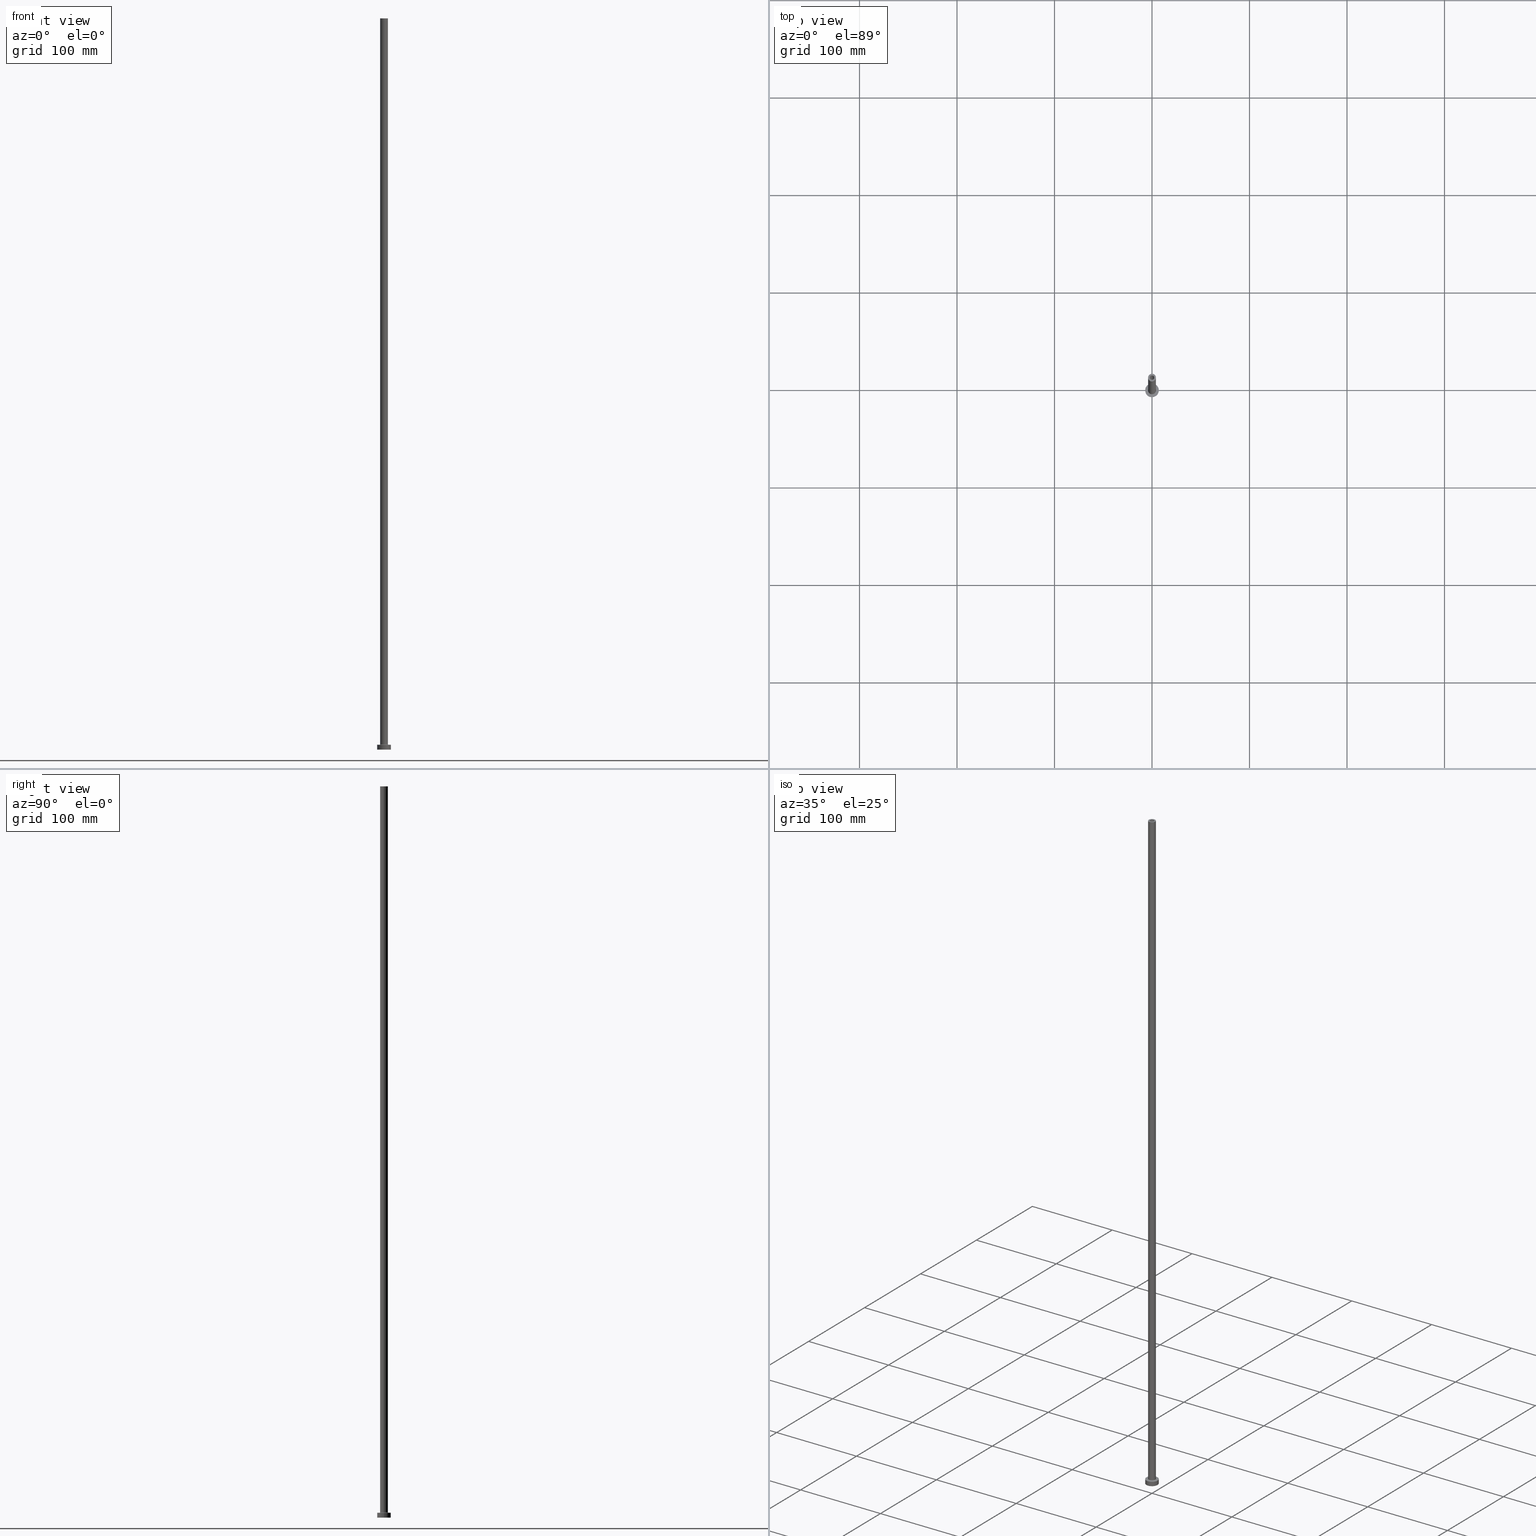
[diagram: canonical four-view strip — front | top / right | iso, engineering-drawing reading convention]
A machine part, canonical four-view strip (front | top / right | iso — engineering-drawing reading convention). The complete STEP part file that produces these views, byte-faithful:
ISO-10303-21;
HEADER;
FILE_DESCRIPTION (( 'STEP AP203' ),
    '1' );
FILE_NAME ('3938.STEP',
    '2023-02-13T17:19:23',
    ( '' ),
    ( '' ),
    'SwSTEP 2.0',
    'SolidWorks 2019',
    '' );
FILE_SCHEMA (( 'CONFIG_CONTROL_DESIGN' ));
ENDSEC;

DATA;
#1 = VERTEX_POINT ( 'NONE', #123 ) ;
#2 = FACE_BOUND ( 'NONE', #36, .T. ) ;
#3 = AXIS2_PLACEMENT_3D ( 'NONE', #62, #205, #174 ) ;
#4 = LINE ( 'NONE', #400, #33 ) ;
#5 = LOCAL_TIME ( 18, 19, 23.00000000000000000, #303 ) ;
#6 = ORIENTED_EDGE ( 'NONE', *, *, #371, .F. ) ;
#7 = CYLINDRICAL_SURFACE ( 'NONE', #146, 2.399999999999999911 ) ;
#8 = ORIENTED_EDGE ( 'NONE', *, *, #103, .T. ) ;
#9 = DIRECTION ( 'NONE',  ( 0.000000000000000000, 0.000000000000000000, 1.000000000000000000 ) ) ;
#10 = ORIENTED_EDGE ( 'NONE', *, *, #226, .T. ) ;
#11 = AXIS2_PLACEMENT_3D ( 'NONE', #353, #249, #321 ) ;
#12 = DIRECTION ( 'NONE',  ( -0.000000000000000000, -0.000000000000000000, -1.000000000000000000 ) ) ;
#13 = VERTEX_POINT ( 'NONE', #446 ) ;
#14 = CIRCLE ( 'NONE', #385, 2.399999999999999911 ) ;
#15 = CARTESIAN_POINT ( 'NONE',  ( -2.399999999999999911, 0.000000000000000000, 711.7882250993908428 ) ) ;
#16 = ORIENTED_EDGE ( 'NONE', *, *, #411, .F. ) ;
#17 = ORIENTED_EDGE ( 'NONE', *, *, #45, .T. ) ;
#18 = APPROVAL_DATE_TIME ( #229, #35 ) ;
#19 = CARTESIAN_POINT ( 'NONE',  ( 0.000000000000000000, 0.000000000000000000, 5.499999999999949374 ) ) ;
#20 = CIRCLE ( 'NONE', #296, 4.000000000000000000 ) ;
#21 = DIRECTION ( 'NONE',  ( 0.000000000000000000, 0.000000000000000000, 1.000000000000000000 ) ) ;
#22 = FACE_OUTER_BOUND ( 'NONE', #71, .T. ) ;
#23 = COORDINATED_UNIVERSAL_TIME_OFFSET ( 1, 0, .AHEAD. ) ;
#24 = CARTESIAN_POINT ( 'NONE',  ( -4.000000000000000000, 0.000000000000000000, 5.499999999999949374 ) ) ;
#25 = AXIS2_PLACEMENT_3D ( 'NONE', #276, #130, #34 ) ;
#26 = AXIS2_PLACEMENT_3D ( 'NONE', #304, #262, #367 ) ;
#27 = ADVANCED_FACE ( 'NONE', ( #273 ), #277, .F. ) ;
#28 = CARTESIAN_POINT ( 'NONE',  ( -2.250000000000000000, 0.000000000000000000, 750.0000000000000000 ) ) ;
#29 = CARTESIAN_POINT ( 'NONE',  ( 0.000000000000000000, 0.000000000000000000, 0.000000000000000000 ) ) ;
#30 = DIRECTION ( 'NONE',  ( 1.000000000000000000, 0.000000000000000000, -0.000000000000000000 ) ) ;
#31 = ADVANCED_FACE ( 'NONE', ( #195, #22 ), #374, .F. ) ;
#32 = VERTEX_POINT ( 'NONE', #24 ) ;
#33 = VECTOR ( 'NONE', #74, 1000.000000000000000 ) ;
#34 = DIRECTION ( 'NONE',  ( -1.000000000000000000, 0.000000000000000000, 0.000000000000000000 ) ) ;
#35 = APPROVAL ( #197, 'NEUR�EN�' ) ;
#36 = EDGE_LOOP ( 'NONE', ( #391, #329 ) ) ;
#37 = DIRECTION ( 'NONE',  ( 1.000000000000000000, 0.000000000000000000, 0.000000000000000000 ) ) ;
#38 = CARTESIAN_POINT ( 'NONE',  ( 0.000000000000000000, 0.000000000000000000, 711.7882250993908428 ) ) ;
#39 = APPLICATION_CONTEXT ( 'configuration controlled 3d designs of mechanical parts and assemblies' ) ;
#40 = CARTESIAN_POINT ( 'NONE',  ( 0.000000000000000000, 0.000000000000000000, 750.0000000000000000 ) ) ;
#41 = VERTEX_POINT ( 'NONE', #128 ) ;
#42 = CIRCLE ( 'NONE', #455, 0.5000000000000004441 ) ;
#43 = ORIENTED_EDGE ( 'NONE', *, *, #158, .T. ) ;
#44 = CARTESIAN_POINT ( 'NONE',  ( 4.000000000000000000, 4.898587196589412829E-16, 750.0000000000000000 ) ) ;
#45 = EDGE_CURVE ( 'NONE', #290, #13, #92, .T. ) ;
#46 = ORIENTED_EDGE ( 'NONE', *, *, #450, .T. ) ;
#47 = DIRECTION ( 'NONE',  ( -0.000000000000000000, -0.000000000000000000, -1.000000000000000000 ) ) ;
#48 = EDGE_LOOP ( 'NONE', ( #137, #155, #183, #441 ) ) ;
#49 = DIRECTION ( 'NONE',  ( 1.000000000000000000, 0.000000000000000000, 0.000000000000000000 ) ) ;
#50 = ORIENTED_EDGE ( 'NONE', *, *, #450, .F. ) ;
#51 = CARTESIAN_POINT ( 'NONE',  ( -2.399999999999999911, 0.000000000000000000, 0.000000000000000000 ) ) ;
#52 = PERSON_AND_ORGANIZATION ( #399, #381 ) ;
#53 = ORIENTED_EDGE ( 'NONE', *, *, #178, .F. ) ;
#54 =( NAMED_UNIT ( * ) SI_UNIT ( $, .STERADIAN. ) SOLID_ANGLE_UNIT ( ) );
#55 = AXIS2_PLACEMENT_3D ( 'NONE', #370, #452, #56 ) ;
#56 = DIRECTION ( 'NONE',  ( 1.000000000000000000, 0.000000000000000000, 0.000000000000000000 ) ) ;
#57 = APPLICATION_PROTOCOL_DEFINITION ( 'international standard', 'config_control_design', 1994, #169 ) ;
#58 = CYLINDRICAL_SURFACE ( 'NONE', #214, 7.000000000000000000 ) ;
#59 = ADVANCED_FACE ( 'NONE', ( #306 ), #58, .T. ) ;
#60 = CLOSED_SHELL ( 'NONE', ( #141, #387, #27, #272, #248, #59, #283, #307, #313, #340, #86, #434, #31, #332 ) ) ;
#61 = TOROIDAL_SURFACE ( 'NONE', #423, 4.500000000000000888, 0.5000000000000000000 ) ;
#62 = CARTESIAN_POINT ( 'NONE',  ( 0.000000000000000000, 0.000000000000000000, 705.0000000000000000 ) ) ;
#63 = CARTESIAN_POINT ( 'NONE',  ( 0.000000000000000000, 0.000000000000000000, 0.000000000000000000 ) ) ;
#64 = EDGE_LOOP ( 'NONE', ( #132, #79 ) ) ;
#65 = CARTESIAN_POINT ( 'NONE',  ( -4.500000000000000888, 5.510910596163089556E-16, 5.499999999999949374 ) ) ;
#66 = AXIS2_PLACEMENT_3D ( 'NONE', #38, #114, #317 ) ;
#67 = DIRECTION ( 'NONE',  ( 0.000000000000000000, 0.000000000000000000, -1.000000000000000000 ) ) ;
#68 = ORIENTED_EDGE ( 'NONE', *, *, #239, .T. ) ;
#69 = AXIS2_PLACEMENT_3D ( 'NONE', #235, #280, #96 ) ;
#70 = DIRECTION ( 'NONE',  ( 0.000000000000000000, 0.000000000000000000, 1.000000000000000000 ) ) ;
#71 = EDGE_LOOP ( 'NONE', ( #356, #250 ) ) ;
#72 = CARTESIAN_POINT ( 'NONE',  ( 4.000000000000000000, 4.898587196589412829E-16, 5.499999999999949374 ) ) ;
#73 = ORIENTED_EDGE ( 'NONE', *, *, #278, .T. ) ;
#74 = DIRECTION ( 'NONE',  ( -0.000000000000000000, -0.000000000000000000, -1.000000000000000000 ) ) ;
#75 = VECTOR ( 'NONE', #417, 1000.000000000000000 ) ;
#76 = CC_DESIGN_APPROVAL ( #35, ( #291 ) ) ;
#77 = ORIENTED_EDGE ( 'NONE', *, *, #110, .F. ) ;
#78 = CYLINDRICAL_SURFACE ( 'NONE', #66, 2.399999999999999911 ) ;
#79 = ORIENTED_EDGE ( 'NONE', *, *, #288, .F. ) ;
#80 = LINE ( 'NONE', #359, #154 ) ;
#81 = VERTEX_POINT ( 'NONE', #337 ) ;
#82 = DIRECTION ( 'NONE',  ( -1.000000000000000000, 0.000000000000000000, 0.000000000000000000 ) ) ;
#83 = CIRCLE ( 'NONE', #319, 4.000000000000000000 ) ;
#84 = ORIENTED_EDGE ( 'NONE', *, *, #253, .T. ) ;
#85 = DIRECTION ( 'NONE',  ( 1.000000000000000000, 0.000000000000000000, 0.000000000000000000 ) ) ;
#86 = ADVANCED_FACE ( 'NONE', ( #157 ), #61, .F. ) ;
#87 = APPROVAL_DATE_TIME ( #118, #105 ) ;
#88 = DIRECTION ( 'NONE',  ( 1.000000000000000000, 0.000000000000000000, 0.000000000000000000 ) ) ;
#89 = PERSON_AND_ORGANIZATION ( #399, #381 ) ;
#90 = EDGE_LOOP ( 'NONE', ( #225, #402, #217, #218 ) ) ;
#91 = COORDINATED_UNIVERSAL_TIME_OFFSET ( 1, 0, .AHEAD. ) ;
#92 = LINE ( 'NONE', #266, #75 ) ;
#93 = DIRECTION ( 'NONE',  ( 1.000000000000000000, 0.000000000000000000, 0.000000000000000000 ) ) ;
#94 = CARTESIAN_POINT ( 'NONE',  ( -7.000000000000000000, 0.000000000000000000, 0.000000000000000000 ) ) ;
#95 = AXIS2_PLACEMENT_3D ( 'NONE', #63, #206, #30 ) ;
#96 = DIRECTION ( 'NONE',  ( 1.000000000000000000, 0.000000000000000000, 0.000000000000000000 ) ) ;
#97 = DIRECTION ( 'NONE',  ( 0.000000000000000000, 0.000000000000000000, 1.000000000000000000 ) ) ;
#98 = CARTESIAN_POINT ( 'NONE',  ( 4.500000000000000888, 0.000000000000000000, 5.499999999999949374 ) ) ;
#99 = VERTEX_POINT ( 'NONE', #454 ) ;
#100 = VECTOR ( 'NONE', #242, 1000.000000000000000 ) ;
#101 = CC_DESIGN_APPROVAL ( #347, ( #271 ) ) ;
#102 = CARTESIAN_POINT ( 'NONE',  ( 0.000000000000000000, 0.000000000000000000, 5.000000000000000000 ) ) ;
#103 = EDGE_CURVE ( 'NONE', #232, #41, #380, .T. ) ;
#104 = FACE_OUTER_BOUND ( 'NONE', #435, .T. ) ;
#105 = APPROVAL ( #151, 'NEUR�EN�' ) ;
#106 = ORIENTED_EDGE ( 'NONE', *, *, #352, .T. ) ;
#107 = CARTESIAN_POINT ( 'NONE',  ( 0.000000000000000000, 0.000000000000000000, 750.0000000000000000 ) ) ;
#108 = MANIFOLD_SOLID_BREP ( 'Odebrat vysunut�m4', #60 ) ;
#109 = ORIENTED_EDGE ( 'NONE', *, *, #167, .F. ) ;
#110 = EDGE_CURVE ( 'NONE', #144, #147, #447, .T. ) ;
#111 = DIRECTION ( 'NONE',  ( -0.000000000000000000, -0.000000000000000000, -1.000000000000000000 ) ) ;
#112 = CC_DESIGN_APPROVAL ( #105, ( #177 ) ) ;
#113 = EDGE_LOOP ( 'NONE', ( #233, #8, #444, #252 ) ) ;
#114 = DIRECTION ( 'NONE',  ( 0.000000000000000000, 0.000000000000000000, -1.000000000000000000 ) ) ;
#115 = VERTEX_POINT ( 'NONE', #270 ) ;
#116 = DIRECTION ( 'NONE',  ( 0.000000000000000000, 0.000000000000000000, 1.000000000000000000 ) ) ;
#117 = ORIENTED_EDGE ( 'NONE', *, *, #352, .F. ) ;
#118 = DATE_AND_TIME ( #412, #203 ) ;
#119 = CIRCLE ( 'NONE', #377, 7.000000000000000000 ) ;
#120 = CIRCLE ( 'NONE', #55, 4.000000000000000000 ) ;
#121 = CYLINDRICAL_SURFACE ( 'NONE', #26, 2.250000000000000000 ) ;
#122 = PERSON_AND_ORGANIZATION_ROLE ( 'creator' ) ;
#123 = CARTESIAN_POINT ( 'NONE',  ( -7.000000000000000000, 0.000000000000000000, 5.000000000000000000 ) ) ;
#124 = DIRECTION ( 'NONE',  ( 0.000000000000000000, 0.000000000000000000, 1.000000000000000000 ) ) ;
#125 = CALENDAR_DATE ( 2023, 13, 2 ) ;
#126 = DIRECTION ( 'NONE',  ( 0.000000000000000000, 0.000000000000000000, 1.000000000000000000 ) ) ;
#127 = PRODUCT ( '3938', '3938', '', ( #156 ) ) ;
#128 = CARTESIAN_POINT ( 'NONE',  ( -2.399999999999999911, 0.000000000000000000, 705.0000000000000000 ) ) ;
#129 = DIRECTION ( 'NONE',  ( 1.000000000000000000, 0.000000000000000000, -0.000000000000000000 ) ) ;
#130 = DIRECTION ( 'NONE',  ( -0.000000000000000000, -0.000000000000000000, -1.000000000000000000 ) ) ;
#131 = CC_DESIGN_DATE_AND_TIME_ASSIGNMENT ( #159, #269, ( #271 ) ) ;
#132 = ORIENTED_EDGE ( 'NONE', *, *, #220, .F. ) ;
#133 = AXIS2_PLACEMENT_3D ( 'NONE', #140, #9, #328 ) ;
#134 = FACE_OUTER_BOUND ( 'NONE', #48, .T. ) ;
#135 = CIRCLE ( 'NONE', #245, 7.000000000000000000 ) ;
#136 = DIRECTION ( 'NONE',  ( -0.000000000000000000, -0.000000000000000000, -1.000000000000000000 ) ) ;
#137 = ORIENTED_EDGE ( 'NONE', *, *, #158, .F. ) ;
#138 = FACE_OUTER_BOUND ( 'NONE', #437, .T. ) ;
#139 = FACE_OUTER_BOUND ( 'NONE', #113, .T. ) ;
#140 = CARTESIAN_POINT ( 'NONE',  ( 0.000000000000000000, 0.000000000000000000, 750.0000000000000000 ) ) ;
#141 = ADVANCED_FACE ( 'NONE', ( #295 ), #121, .F. ) ;
#142 = ORIENTED_EDGE ( 'NONE', *, *, #264, .F. ) ;
#143 = LINE ( 'NONE', #219, #243 ) ;
#144 = VERTEX_POINT ( 'NONE', #51 ) ;
#145 = CYLINDRICAL_SURFACE ( 'NONE', #422, 4.000000000000000000 ) ;
#146 = AXIS2_PLACEMENT_3D ( 'NONE', #326, #289, #82 ) ;
#147 = VERTEX_POINT ( 'NONE', #192 ) ;
#148 = CARTESIAN_POINT ( 'NONE',  ( 0.000000000000000000, 0.000000000000000000, 750.0000000000000000 ) ) ;
#149 = ORIENTED_EDGE ( 'NONE', *, *, #421, .F. ) ;
#150 = CC_DESIGN_PERSON_AND_ORGANIZATION_ASSIGNMENT ( #191, #294, ( #127 ) ) ;
#151 = APPROVAL_STATUS ( 'not_yet_approved' ) ;
#152 = CARTESIAN_POINT ( 'NONE',  ( 0.000000000000000000, 0.000000000000000000, 0.000000000000000000 ) ) ;
#153 = PERSON_AND_ORGANIZATION_ROLE ( 'creator' ) ;
#154 = VECTOR ( 'NONE', #181, 1000.000000000000000 ) ;
#155 = ORIENTED_EDGE ( 'NONE', *, *, #371, .T. ) ;
#156 = MECHANICAL_CONTEXT ( 'NONE', #39, 'mechanical' ) ;
#157 = FACE_OUTER_BOUND ( 'NONE', #325, .T. ) ;
#158 = EDGE_CURVE ( 'NONE', #115, #1, #202, .T. ) ;
#159 = DATE_AND_TIME ( #125, #299 ) ;
#160 = EDGE_LOOP ( 'NONE', ( #362, #293 ) ) ;
#161 = COORDINATED_UNIVERSAL_TIME_OFFSET ( 1, 0, .AHEAD. ) ;
#162 = ORIENTED_EDGE ( 'NONE', *, *, #234, .T. ) ;
#163 = AXIS2_PLACEMENT_3D ( 'NONE', #430, #240, #461 ) ;
#164 = APPROVAL_PERSON_ORGANIZATION ( #227, #347, #416 ) ;
#165 = CIRCLE ( 'NONE', #376, 4.500000000000000888 ) ;
#166 = CARTESIAN_POINT ( 'NONE',  ( -4.000000000000000000, 0.000000000000000000, 750.0000000000000000 ) ) ;
#167 = EDGE_CURVE ( 'NONE', #375, #32, #83, .T. ) ;
#168 = CARTESIAN_POINT ( 'NONE',  ( 0.000000000000000000, 0.000000000000000000, 750.0000000000000000 ) ) ;
#169 = APPLICATION_CONTEXT ( 'configuration controlled 3d designs of mechanical parts and assemblies' ) ;
#170 = DIRECTION ( 'NONE',  ( 1.000000000000000000, 0.000000000000000000, 0.000000000000000000 ) ) ;
#171 = CC_DESIGN_SECURITY_CLASSIFICATION ( #271, ( #177 ) ) ;
#172 = DIRECTION ( 'NONE',  ( 1.224646799147353207E-16, 1.000000000000000000, -0.000000000000000000 ) ) ;
#173 = EDGE_CURVE ( 'NONE', #32, #375, #120, .T. ) ;
#174 = DIRECTION ( 'NONE',  ( 1.000000000000000000, 0.000000000000000000, 0.000000000000000000 ) ) ;
#175 = PLANE ( 'NONE',  #133 ) ;
#176 = AXIS2_PLACEMENT_3D ( 'NONE', #316, #136, #37 ) ;
#177 = PRODUCT_DEFINITION_FORMATION_WITH_SPECIFIED_SOURCE ( 'LIBOVOLN�', '', #127, .NOT_KNOWN. ) ;
#178 = EDGE_CURVE ( 'NONE', #32, #284, #389, .T. ) ;
#179 = CYLINDRICAL_SURFACE ( 'NONE', #395, 2.250000000000000000 ) ;
#180 = ORIENTED_EDGE ( 'NONE', *, *, #45, .F. ) ;
#181 = DIRECTION ( 'NONE',  ( 0.000000000000000000, 0.000000000000000000, -1.000000000000000000 ) ) ;
#182 = PRODUCT_RELATED_PRODUCT_CATEGORY ( 'detail', '', ( #127 ) ) ;
#183 = ORIENTED_EDGE ( 'NONE', *, *, #288, .T. ) ;
#184 = DIRECTION ( 'NONE',  ( -0.000000000000000000, -0.000000000000000000, -1.000000000000000000 ) ) ;
#185 = EDGE_LOOP ( 'NONE', ( #180, #208, #46, #331 ) ) ;
#186 = VECTOR ( 'NONE', #436, 1000.000000000000000 ) ;
#187 = DIRECTION ( 'NONE',  ( -1.000000000000000000, 0.000000000000000000, 0.000000000000000000 ) ) ;
#188 = ORIENTED_EDGE ( 'NONE', *, *, #204, .T. ) ;
#189 = CALENDAR_DATE ( 2023, 13, 2 ) ;
#190 = VERTEX_POINT ( 'NONE', #94 ) ;
#191 = PERSON_AND_ORGANIZATION ( #399, #381 ) ;
#192 = CARTESIAN_POINT ( 'NONE',  ( 2.399999999999999911, 2.939152317953647106E-16, 0.000000000000000000 ) ) ;
#193 = CALENDAR_DATE ( 2023, 13, 2 ) ;
#194 = CIRCLE ( 'NONE', #456, 2.250000000000000000 ) ;
#195 = FACE_BOUND ( 'NONE', #379, .T. ) ;
#196 = AXIS2_PLACEMENT_3D ( 'NONE', #65, #172, #207 ) ;
#197 = APPROVAL_STATUS ( 'not_yet_approved' ) ;
#198 = CARTESIAN_POINT ( 'NONE',  ( 0.000000000000000000, 0.000000000000000000, 5.499999999999949374 ) ) ;
#199 = APPROVAL_DATE_TIME ( #231, #347 ) ;
#200 = DIRECTION ( 'NONE',  ( -0.000000000000000000, -0.000000000000000000, -1.000000000000000000 ) ) ;
#201 = DIRECTION ( 'NONE',  ( -0.000000000000000000, -0.000000000000000000, -1.000000000000000000 ) ) ;
#202 = CIRCLE ( 'NONE', #336, 7.000000000000000000 ) ;
#203 = LOCAL_TIME ( 18, 19, 23.00000000000000000, #448 ) ;
#204 = EDGE_CURVE ( 'NONE', #13, #286, #418, .T. ) ;
#205 = DIRECTION ( 'NONE',  ( 0.000000000000000000, 0.000000000000000000, 1.000000000000000000 ) ) ;
#206 = DIRECTION ( 'NONE',  ( 0.000000000000000000, 0.000000000000000000, 1.000000000000000000 ) ) ;
#207 = DIRECTION ( 'NONE',  ( -1.000000000000000000, 1.224646799147351482E-16, 0.000000000000000000 ) ) ;
#208 = ORIENTED_EDGE ( 'NONE', *, *, #345, .T. ) ;
#209 = DIRECTION ( 'NONE',  ( -0.000000000000000000, -0.000000000000000000, -1.000000000000000000 ) ) ;
#210 = CARTESIAN_POINT ( 'NONE',  ( 2.250000000000000000, 2.755455298081544285E-16, 750.0000000000000000 ) ) ;
#211 = DIRECTION ( 'NONE',  ( 1.000000000000000000, 0.000000000000000000, 0.000000000000000000 ) ) ;
#212 = EDGE_LOOP ( 'NONE', ( #117, #327 ) ) ;
#213 = CIRCLE ( 'NONE', #429, 7.000000000000000000 ) ;
#214 = AXIS2_PLACEMENT_3D ( 'NONE', #228, #200, #339 ) ;
#215 = CC_DESIGN_PERSON_AND_ORGANIZATION_ASSIGNMENT ( #409, #373, ( #271 ) ) ;
#216 = LINE ( 'NONE', #44, #259 ) ;
#217 = ORIENTED_EDGE ( 'NONE', *, *, #404, .F. ) ;
#218 = ORIENTED_EDGE ( 'NONE', *, *, #226, .F. ) ;
#219 = CARTESIAN_POINT ( 'NONE',  ( 7.000000000000000000, 8.572527594031473190E-16, 5.000000000000000000 ) ) ;
#220 = EDGE_CURVE ( 'NONE', #190, #81, #135, .T. ) ;
#221 = EDGE_LOOP ( 'NONE', ( #106, #17, #238, #50 ) ) ;
#222 = AXIS2_PLACEMENT_3D ( 'NONE', #198, #449, #301 ) ;
#223 = PERSON_AND_ORGANIZATION ( #399, #381 ) ;
#224 = ORIENTED_EDGE ( 'NONE', *, *, #426, .T. ) ;
#225 = ORIENTED_EDGE ( 'NONE', *, *, #173, .F. ) ;
#226 = EDGE_CURVE ( 'NONE', #375, #358, #42, .T. ) ;
#227 = PERSON_AND_ORGANIZATION ( #399, #381 ) ;
#228 = CARTESIAN_POINT ( 'NONE',  ( 0.000000000000000000, 0.000000000000000000, 5.000000000000000000 ) ) ;
#229 = DATE_AND_TIME ( #189, #5 ) ;
#230 = CARTESIAN_POINT ( 'NONE',  ( 0.000000000000000000, 0.000000000000000000, 5.000000000000000000 ) ) ;
#231 = DATE_AND_TIME ( #330, #350 ) ;
#232 = VERTEX_POINT ( 'NONE', #315 ) ;
#233 = ORIENTED_EDGE ( 'NONE', *, *, #324, .F. ) ;
#234 = EDGE_CURVE ( 'NONE', #99, #32, #311, .T. ) ;
#235 = CARTESIAN_POINT ( 'NONE',  ( 0.000000000000000000, 0.000000000000000000, 705.0000000000000000 ) ) ;
#236 = AXIS2_PLACEMENT_3D ( 'NONE', #152, #201, #93 ) ;
#237 = FACE_BOUND ( 'NONE', #257, .T. ) ;
#238 = ORIENTED_EDGE ( 'NONE', *, *, #278, .F. ) ;
#239 = EDGE_CURVE ( 'NONE', #147, #144, #363, .T. ) ;
#240 = DIRECTION ( 'NONE',  ( -0.000000000000000000, -0.000000000000000000, -1.000000000000000000 ) ) ;
#241 = AXIS2_PLACEMENT_3D ( 'NONE', #407, #21, #49 ) ;
#242 = DIRECTION ( 'NONE',  ( -0.000000000000000000, -0.000000000000000000, -1.000000000000000000 ) ) ;
#243 = VECTOR ( 'NONE', #184, 1000.000000000000000 ) ;
#244 = DIRECTION ( 'NONE',  ( 0.000000000000000000, 0.000000000000000000, 1.000000000000000000 ) ) ;
#245 = AXIS2_PLACEMENT_3D ( 'NONE', #29, #378, #170 ) ;
#246 = CARTESIAN_POINT ( 'NONE',  ( 0.000000000000000000, 0.000000000000000000, 5.000000000000000000 ) ) ;
#247 = VERTEX_POINT ( 'NONE', #346 ) ;
#248 = ADVANCED_FACE ( 'NONE', ( #134 ), #281, .T. ) ;
#249 = DIRECTION ( 'NONE',  ( 0.000000000000000000, 0.000000000000000000, 1.000000000000000000 ) ) ;
#250 = ORIENTED_EDGE ( 'NONE', *, *, #103, .F. ) ;
#251 = DIRECTION ( 'NONE',  ( 0.000000000000000000, 0.000000000000000000, 1.000000000000000000 ) ) ;
#252 = ORIENTED_EDGE ( 'NONE', *, *, #110, .T. ) ;
#253 = EDGE_CURVE ( 'NONE', #1, #115, #213, .T. ) ;
#254 = CARTESIAN_POINT ( 'NONE',  ( 0.000000000000000000, 0.000000000000000000, 705.0000000000000000 ) ) ;
#255 = VERTEX_POINT ( 'NONE', #28 ) ;
#256 = DIRECTION ( 'NONE',  ( 1.000000000000000000, 0.000000000000000000, 0.000000000000000000 ) ) ;
#257 = EDGE_LOOP ( 'NONE', ( #77, #360 ) ) ;
#258 = ADVANCED_BREP_SHAPE_REPRESENTATION ( '3938', ( #108, #241 ), #401 ) ;
#259 = VECTOR ( 'NONE', #47, 1000.000000000000000 ) ;
#260 = AXIS2_PLACEMENT_3D ( 'NONE', #390, #97, #129 ) ;
#261 = LOCAL_TIME ( 18, 19, 23.00000000000000000, #161 ) ;
#262 = DIRECTION ( 'NONE',  ( 0.000000000000000000, 0.000000000000000000, -1.000000000000000000 ) ) ;
#263 = AXIS2_PLACEMENT_3D ( 'NONE', #413, #419, #342 ) ;
#264 = EDGE_CURVE ( 'NONE', #284, #358, #318, .T. ) ;
#265 = SECURITY_CLASSIFICATION_LEVEL ( 'unclassified' ) ;
#266 = CARTESIAN_POINT ( 'NONE',  ( 2.250000000000000000, 2.755455298081544285E-16, 750.0000000000000000 ) ) ;
#267 = DIRECTION ( 'NONE',  ( 0.000000000000000000, 0.000000000000000000, 1.000000000000000000 ) ) ;
#268 = CIRCLE ( 'NONE', #11, 2.250000000000000000 ) ;
#269 = DATE_TIME_ROLE ( 'classification_date' ) ;
#270 = CARTESIAN_POINT ( 'NONE',  ( 7.000000000000000000, 8.572527594031473190E-16, 5.000000000000000000 ) ) ;
#271 = SECURITY_CLASSIFICATION ( '', '', #265 ) ;
#272 = ADVANCED_FACE ( 'NONE', ( #351 ), #279, .T. ) ;
#273 = FACE_OUTER_BOUND ( 'NONE', #90, .T. ) ;
#274 = DESIGN_CONTEXT ( 'detailed design', #169, 'design' ) ;
#275 = CARTESIAN_POINT ( 'NONE',  ( 0.000000000000000000, 0.000000000000000000, 0.000000000000000000 ) ) ;
#276 = CARTESIAN_POINT ( 'NONE',  ( 0.000000000000000000, 0.000000000000000000, 750.0000000000000000 ) ) ;
#277 = TOROIDAL_SURFACE ( 'NONE', #222, 4.500000000000000888, 0.5000000000000000000 ) ;
#278 = EDGE_CURVE ( 'NONE', #286, #13, #406, .T. ) ;
#279 = CYLINDRICAL_SURFACE ( 'NONE', #25, 4.000000000000000000 ) ;
#280 = DIRECTION ( 'NONE',  ( 0.000000000000000000, 0.000000000000000000, 1.000000000000000000 ) ) ;
#281 = CYLINDRICAL_SURFACE ( 'NONE', #163, 7.000000000000000000 ) ;
#282 = DIRECTION ( 'NONE',  ( -1.000000000000000000, 0.000000000000000000, 0.000000000000000000 ) ) ;
#283 = ADVANCED_FACE ( 'NONE', ( #2, #138 ), #314, .T. ) ;
#284 = VERTEX_POINT ( 'NONE', #348 ) ;
#285 = LINE ( 'NONE', #403, #186 ) ;
#286 = VERTEX_POINT ( 'NONE', #384 ) ;
#287 = ORIENTED_EDGE ( 'NONE', *, *, #442, .T. ) ;
#288 = EDGE_CURVE ( 'NONE', #81, #190, #119, .T. ) ;
#289 = DIRECTION ( 'NONE',  ( 0.000000000000000000, 0.000000000000000000, -1.000000000000000000 ) ) ;
#290 = VERTEX_POINT ( 'NONE', #210 ) ;
#291 = PRODUCT_DEFINITION ( 'NEZN�M�', '', #177, #274 ) ;
#292 = DIRECTION ( 'NONE',  ( 0.000000000000000000, 0.000000000000000000, -1.000000000000000000 ) ) ;
#293 = ORIENTED_EDGE ( 'NONE', *, *, #411, .T. ) ;
#294 = PERSON_AND_ORGANIZATION_ROLE ( 'design_owner' ) ;
#295 = FACE_OUTER_BOUND ( 'NONE', #221, .T. ) ;
#296 = AXIS2_PLACEMENT_3D ( 'NONE', #168, #312, #459 ) ;
#297 = AXIS2_PLACEMENT_3D ( 'NONE', #372, #124, #309 ) ;
#298 = DATE_AND_TIME ( #193, #261 ) ;
#299 = LOCAL_TIME ( 18, 19, 23.00000000000000000, #23 ) ;
#300 = EDGE_CURVE ( 'NONE', #99, #247, #20, .T. ) ;
#301 = DIRECTION ( 'NONE',  ( 1.000000000000000000, 0.000000000000000000, 0.000000000000000000 ) ) ;
#302 = UNCERTAINTY_MEASURE_WITH_UNIT (LENGTH_MEASURE( 1.000000000000000082E-05 ), #438, 'distance_accuracy_value', 'NONE');
#303 = COORDINATED_UNIVERSAL_TIME_OFFSET ( 1, 0, .AHEAD. ) ;
#304 = CARTESIAN_POINT ( 'NONE',  ( 0.000000000000000000, 0.000000000000000000, 750.0000000000000000 ) ) ;
#305 =( NAMED_UNIT ( * ) PLANE_ANGLE_UNIT ( ) SI_UNIT ( $, .RADIAN. ) );
#306 = FACE_OUTER_BOUND ( 'NONE', #322, .T. ) ;
#307 = ADVANCED_FACE ( 'NONE', ( #237, #424 ), #382, .F. ) ;
#308 = SHAPE_DEFINITION_REPRESENTATION ( #344, #258 ) ;
#309 = DIRECTION ( 'NONE',  ( 1.000000000000000000, 0.000000000000000000, 0.000000000000000000 ) ) ;
#310 = AXIS2_PLACEMENT_3D ( 'NONE', #357, #397, #211 ) ;
#311 = LINE ( 'NONE', #166, #100 ) ;
#312 = DIRECTION ( 'NONE',  ( 0.000000000000000000, 0.000000000000000000, 1.000000000000000000 ) ) ;
#313 = ADVANCED_FACE ( 'NONE', ( #349 ), #145, .T. ) ;
#314 = PLANE ( 'NONE',  #260 ) ;
#315 = CARTESIAN_POINT ( 'NONE',  ( 2.399999999999999911, 2.939152317953647106E-16, 705.0000000000000000 ) ) ;
#316 = CARTESIAN_POINT ( 'NONE',  ( 0.000000000000000000, 0.000000000000000000, 0.000000000000000000 ) ) ;
#317 = DIRECTION ( 'NONE',  ( -1.000000000000000000, 0.000000000000000000, 0.000000000000000000 ) ) ;
#318 = CIRCLE ( 'NONE', #335, 4.500000000000000888 ) ;
#319 = AXIS2_PLACEMENT_3D ( 'NONE', #19, #410, #88 ) ;
#320 = CC_DESIGN_PERSON_AND_ORGANIZATION_ASSIGNMENT ( #453, #122, ( #177 ) ) ;
#321 = DIRECTION ( 'NONE',  ( 1.000000000000000000, 0.000000000000000000, 0.000000000000000000 ) ) ;
#322 = EDGE_LOOP ( 'NONE', ( #6, #398, #224, #457 ) ) ;
#323 = DIRECTION ( 'NONE',  ( 1.000000000000000000, 0.000000000000000000, 0.000000000000000000 ) ) ;
#324 = EDGE_CURVE ( 'NONE', #232, #147, #80, .T. ) ;
#325 = EDGE_LOOP ( 'NONE', ( #53, #109, #10, #142 ) ) ;
#326 = CARTESIAN_POINT ( 'NONE',  ( 0.000000000000000000, 0.000000000000000000, 711.7882250993908428 ) ) ;
#327 = ORIENTED_EDGE ( 'NONE', *, *, #345, .F. ) ;
#328 = DIRECTION ( 'NONE',  ( 1.000000000000000000, 0.000000000000000000, -0.000000000000000000 ) ) ;
#329 = ORIENTED_EDGE ( 'NONE', *, *, #264, .T. ) ;
#330 = CALENDAR_DATE ( 2023, 13, 2 ) ;
#331 = ORIENTED_EDGE ( 'NONE', *, *, #204, .F. ) ;
#332 = ADVANCED_FACE ( 'NONE', ( #440 ), #179, .F. ) ;
#333 = APPROVAL_ROLE ( '' ) ;
#334 = DIRECTION ( 'NONE',  ( 1.000000000000000000, 0.000000000000000000, 0.000000000000000000 ) ) ;
#335 = AXIS2_PLACEMENT_3D ( 'NONE', #102, #209, #425 ) ;
#336 = AXIS2_PLACEMENT_3D ( 'NONE', #230, #267, #334 ) ;
#337 = CARTESIAN_POINT ( 'NONE',  ( 7.000000000000000000, 8.572527594031473190E-16, 0.000000000000000000 ) ) ;
#338 = APPROVAL_ROLE ( '' ) ;
#339 = DIRECTION ( 'NONE',  ( -1.000000000000000000, 0.000000000000000000, 0.000000000000000000 ) ) ;
#340 = ADVANCED_FACE ( 'NONE', ( #355, #432 ), #175, .T. ) ;
#341 = PERSON_AND_ORGANIZATION ( #399, #381 ) ;
#342 = DIRECTION ( 'NONE',  ( 1.000000000000000000, 0.000000000000000000, -0.000000000000000000 ) ) ;
#343 = EDGE_LOOP ( 'NONE', ( #16, #405, #396, #383 ) ) ;
#344 = PRODUCT_DEFINITION_SHAPE ( 'NONE', 'NONE',  #291 ) ;
#345 = EDGE_CURVE ( 'NONE', #290, #255, #194, .T. ) ;
#346 = CARTESIAN_POINT ( 'NONE',  ( 4.000000000000000000, 4.898587196589412829E-16, 750.0000000000000000 ) ) ;
#347 = APPROVAL ( #369, 'NEUR�EN�' ) ;
#348 = CARTESIAN_POINT ( 'NONE',  ( -4.500000000000000888, 5.510910596163088569E-16, 4.999999999999975131 ) ) ;
#349 = FACE_OUTER_BOUND ( 'NONE', #428, .T. ) ;
#350 = LOCAL_TIME ( 18, 19, 23.00000000000000000, #91 ) ;
#351 = FACE_OUTER_BOUND ( 'NONE', #343, .T. ) ;
#352 = EDGE_CURVE ( 'NONE', #255, #290, #268, .T. ) ;
#353 = CARTESIAN_POINT ( 'NONE',  ( 0.000000000000000000, 0.000000000000000000, 750.0000000000000000 ) ) ;
#354 = CC_DESIGN_DATE_AND_TIME_ASSIGNMENT ( #298, #445, ( #291 ) ) ;
#355 = FACE_BOUND ( 'NONE', #212, .T. ) ;
#356 = ORIENTED_EDGE ( 'NONE', *, *, #442, .F. ) ;
#357 = CARTESIAN_POINT ( 'NONE',  ( 0.000000000000000000, 0.000000000000000000, 750.0000000000000000 ) ) ;
#358 = VERTEX_POINT ( 'NONE', #392 ) ;
#359 = CARTESIAN_POINT ( 'NONE',  ( 2.399999999999999911, 2.939152317953647106E-16, 711.7882250993908428 ) ) ;
#360 = ORIENTED_EDGE ( 'NONE', *, *, #239, .F. ) ;
#361 = DIRECTION ( 'NONE',  ( 0.000000000000000000, 0.000000000000000000, -1.000000000000000000 ) ) ;
#362 = ORIENTED_EDGE ( 'NONE', *, *, #300, .T. ) ;
#363 = CIRCLE ( 'NONE', #176, 2.399999999999999911 ) ;
#364 = PERSON_AND_ORGANIZATION_ROLE ( 'design_supplier' ) ;
#365 = ORIENTED_EDGE ( 'NONE', *, *, #366, .F. ) ;
#366 = EDGE_CURVE ( 'NONE', #247, #375, #216, .T. ) ;
#367 = DIRECTION ( 'NONE',  ( -1.000000000000000000, 0.000000000000000000, 0.000000000000000000 ) ) ;
#368 = CC_DESIGN_PERSON_AND_ORGANIZATION_ASSIGNMENT ( #89, #364, ( #177 ) ) ;
#369 = APPROVAL_STATUS ( 'not_yet_approved' ) ;
#370 = CARTESIAN_POINT ( 'NONE',  ( 0.000000000000000000, 0.000000000000000000, 5.499999999999949374 ) ) ;
#371 = EDGE_CURVE ( 'NONE', #115, #81, #143, .T. ) ;
#372 = CARTESIAN_POINT ( 'NONE',  ( 0.000000000000000000, 0.000000000000000000, 705.0000000000000000 ) ) ;
#373 = PERSON_AND_ORGANIZATION_ROLE ( 'classification_officer' ) ;
#374 = PLANE ( 'NONE',  #263 ) ;
#375 = VERTEX_POINT ( 'NONE', #72 ) ;
#376 = AXIS2_PLACEMENT_3D ( 'NONE', #246, #12, #394 ) ;
#377 = AXIS2_PLACEMENT_3D ( 'NONE', #275, #70, #420 ) ;
#378 = DIRECTION ( 'NONE',  ( 0.000000000000000000, 0.000000000000000000, 1.000000000000000000 ) ) ;
#379 = EDGE_LOOP ( 'NONE', ( #73, #188 ) ) ;
#380 = CIRCLE ( 'NONE', #297, 2.399999999999999911 ) ;
#381 = ORGANIZATION ( 'NEUR�EN�', 'NEUR�EN�', '' ) ;
#382 = PLANE ( 'NONE',  #95 ) ;
#383 = ORIENTED_EDGE ( 'NONE', *, *, #234, .F. ) ;
#384 = CARTESIAN_POINT ( 'NONE',  ( -2.250000000000000000, 0.000000000000000000, 705.0000000000000000 ) ) ;
#385 = AXIS2_PLACEMENT_3D ( 'NONE', #254, #116, #256 ) ;
#386 = DIRECTION ( 'NONE',  ( 0.000000000000000000, -1.000000000000000000, 0.000000000000000000 ) ) ;
#387 = ADVANCED_FACE ( 'NONE', ( #104 ), #7, .F. ) ;
#388 = ORIENTED_EDGE ( 'NONE', *, *, #300, .F. ) ;
#389 = CIRCLE ( 'NONE', #196, 0.5000000000000004441 ) ;
#390 = CARTESIAN_POINT ( 'NONE',  ( 0.000000000000000000, 0.000000000000000000, 5.000000000000000000 ) ) ;
#391 = ORIENTED_EDGE ( 'NONE', *, *, #404, .T. ) ;
#392 = CARTESIAN_POINT ( 'NONE',  ( 4.500000000000000888, 0.000000000000000000, 4.999999999999975131 ) ) ;
#393 = ORIENTED_EDGE ( 'NONE', *, *, #173, .T. ) ;
#394 = DIRECTION ( 'NONE',  ( 1.000000000000000000, 0.000000000000000000, 0.000000000000000000 ) ) ;
#395 = AXIS2_PLACEMENT_3D ( 'NONE', #40, #361, #282 ) ;
#396 = ORIENTED_EDGE ( 'NONE', *, *, #167, .T. ) ;
#397 = DIRECTION ( 'NONE',  ( 0.000000000000000000, 0.000000000000000000, 1.000000000000000000 ) ) ;
#398 = ORIENTED_EDGE ( 'NONE', *, *, #253, .F. ) ;
#399 = PERSON ( 'NEUR�EN�', 'NEUR�EN�', 'NEUR�EN�', ('NEUR�EN�'), ('NEUR�EN�'), ('NEUR�EN�') ) ;
#400 = CARTESIAN_POINT ( 'NONE',  ( -7.000000000000000000, 0.000000000000000000, 5.000000000000000000 ) ) ;
#401 =( GEOMETRIC_REPRESENTATION_CONTEXT ( 3 ) GLOBAL_UNCERTAINTY_ASSIGNED_CONTEXT ( ( #302 ) ) GLOBAL_UNIT_ASSIGNED_CONTEXT ( ( #438, #305, #54 ) ) REPRESENTATION_CONTEXT ( 'NONE', 'WORKASPACE' ) );
#402 = ORIENTED_EDGE ( 'NONE', *, *, #178, .T. ) ;
#403 = CARTESIAN_POINT ( 'NONE',  ( -2.250000000000000000, 0.000000000000000000, 750.0000000000000000 ) ) ;
#404 = EDGE_CURVE ( 'NONE', #358, #284, #165, .T. ) ;
#405 = ORIENTED_EDGE ( 'NONE', *, *, #366, .T. ) ;
#406 = CIRCLE ( 'NONE', #3, 2.250000000000000000 ) ;
#407 = CARTESIAN_POINT ( 'NONE',  ( 0.000000000000000000, 0.000000000000000000, 0.000000000000000000 ) ) ;
#408 = CARTESIAN_POINT ( 'NONE',  ( 0.000000000000000000, 0.000000000000000000, 5.499999999999949374 ) ) ;
#409 = PERSON_AND_ORGANIZATION ( #399, #381 ) ;
#410 = DIRECTION ( 'NONE',  ( 0.000000000000000000, 0.000000000000000000, 1.000000000000000000 ) ) ;
#411 = EDGE_CURVE ( 'NONE', #247, #99, #415, .T. ) ;
#412 = CALENDAR_DATE ( 2023, 13, 2 ) ;
#413 = CARTESIAN_POINT ( 'NONE',  ( 0.000000000000000000, 0.000000000000000000, 705.0000000000000000 ) ) ;
#414 = CC_DESIGN_PERSON_AND_ORGANIZATION_ASSIGNMENT ( #52, #153, ( #291 ) ) ;
#415 = CIRCLE ( 'NONE', #310, 4.000000000000000000 ) ;
#416 = APPROVAL_ROLE ( '' ) ;
#417 = DIRECTION ( 'NONE',  ( 0.000000000000000000, 0.000000000000000000, -1.000000000000000000 ) ) ;
#418 = CIRCLE ( 'NONE', #69, 2.250000000000000000 ) ;
#419 = DIRECTION ( 'NONE',  ( 0.000000000000000000, 0.000000000000000000, 1.000000000000000000 ) ) ;
#420 = DIRECTION ( 'NONE',  ( 1.000000000000000000, 0.000000000000000000, 0.000000000000000000 ) ) ;
#421 = EDGE_CURVE ( 'NONE', #41, #144, #443, .T. ) ;
#422 = AXIS2_PLACEMENT_3D ( 'NONE', #107, #111, #187 ) ;
#423 = AXIS2_PLACEMENT_3D ( 'NONE', #408, #126, #85 ) ;
#424 = FACE_OUTER_BOUND ( 'NONE', #64, .T. ) ;
#425 = DIRECTION ( 'NONE',  ( 1.000000000000000000, 0.000000000000000000, 0.000000000000000000 ) ) ;
#426 = EDGE_CURVE ( 'NONE', #1, #190, #4, .T. ) ;
#427 = CARTESIAN_POINT ( 'NONE',  ( 0.000000000000000000, 0.000000000000000000, 5.000000000000000000 ) ) ;
#428 = EDGE_LOOP ( 'NONE', ( #365, #388, #162, #393 ) ) ;
#429 = AXIS2_PLACEMENT_3D ( 'NONE', #427, #244, #458 ) ;
#430 = CARTESIAN_POINT ( 'NONE',  ( 0.000000000000000000, 0.000000000000000000, 5.000000000000000000 ) ) ;
#431 = VECTOR ( 'NONE', #292, 1000.000000000000000 ) ;
#432 = FACE_OUTER_BOUND ( 'NONE', #160, .T. ) ;
#433 = APPROVAL_PERSON_ORGANIZATION ( #223, #35, #333 ) ;
#434 = ADVANCED_FACE ( 'NONE', ( #139 ), #78, .F. ) ;
#435 = EDGE_LOOP ( 'NONE', ( #287, #439, #68, #149 ) ) ;
#436 = DIRECTION ( 'NONE',  ( 0.000000000000000000, 0.000000000000000000, -1.000000000000000000 ) ) ;
#437 = EDGE_LOOP ( 'NONE', ( #84, #43 ) ) ;
#438 =( LENGTH_UNIT ( ) NAMED_UNIT ( * ) SI_UNIT ( .MILLI., .METRE. ) );
#439 = ORIENTED_EDGE ( 'NONE', *, *, #324, .T. ) ;
#440 = FACE_OUTER_BOUND ( 'NONE', #185, .T. ) ;
#441 = ORIENTED_EDGE ( 'NONE', *, *, #426, .F. ) ;
#442 = EDGE_CURVE ( 'NONE', #41, #232, #14, .T. ) ;
#443 = LINE ( 'NONE', #15, #431 ) ;
#444 = ORIENTED_EDGE ( 'NONE', *, *, #421, .T. ) ;
#445 = DATE_TIME_ROLE ( 'creation_date' ) ;
#446 = CARTESIAN_POINT ( 'NONE',  ( 2.250000000000000000, 2.755455298081544285E-16, 705.0000000000000000 ) ) ;
#447 = CIRCLE ( 'NONE', #236, 2.399999999999999911 ) ;
#448 = COORDINATED_UNIVERSAL_TIME_OFFSET ( 1, 0, .AHEAD. ) ;
#449 = DIRECTION ( 'NONE',  ( 0.000000000000000000, 0.000000000000000000, 1.000000000000000000 ) ) ;
#450 = EDGE_CURVE ( 'NONE', #255, #286, #285, .T. ) ;
#451 = APPLICATION_PROTOCOL_DEFINITION ( 'international standard', 'config_control_design', 1994, #39 ) ;
#452 = DIRECTION ( 'NONE',  ( 0.000000000000000000, 0.000000000000000000, 1.000000000000000000 ) ) ;
#453 = PERSON_AND_ORGANIZATION ( #399, #381 ) ;
#454 = CARTESIAN_POINT ( 'NONE',  ( -4.000000000000000000, 0.000000000000000000, 750.0000000000000000 ) ) ;
#455 = AXIS2_PLACEMENT_3D ( 'NONE', #98, #386, #67 ) ;
#456 = AXIS2_PLACEMENT_3D ( 'NONE', #148, #251, #323 ) ;
#457 = ORIENTED_EDGE ( 'NONE', *, *, #220, .T. ) ;
#458 = DIRECTION ( 'NONE',  ( 1.000000000000000000, 0.000000000000000000, 0.000000000000000000 ) ) ;
#459 = DIRECTION ( 'NONE',  ( 1.000000000000000000, 0.000000000000000000, 0.000000000000000000 ) ) ;
#460 = APPROVAL_PERSON_ORGANIZATION ( #341, #105, #338 ) ;
#461 = DIRECTION ( 'NONE',  ( -1.000000000000000000, 0.000000000000000000, 0.000000000000000000 ) ) ;
ENDSEC;
END-ISO-10303-21;
